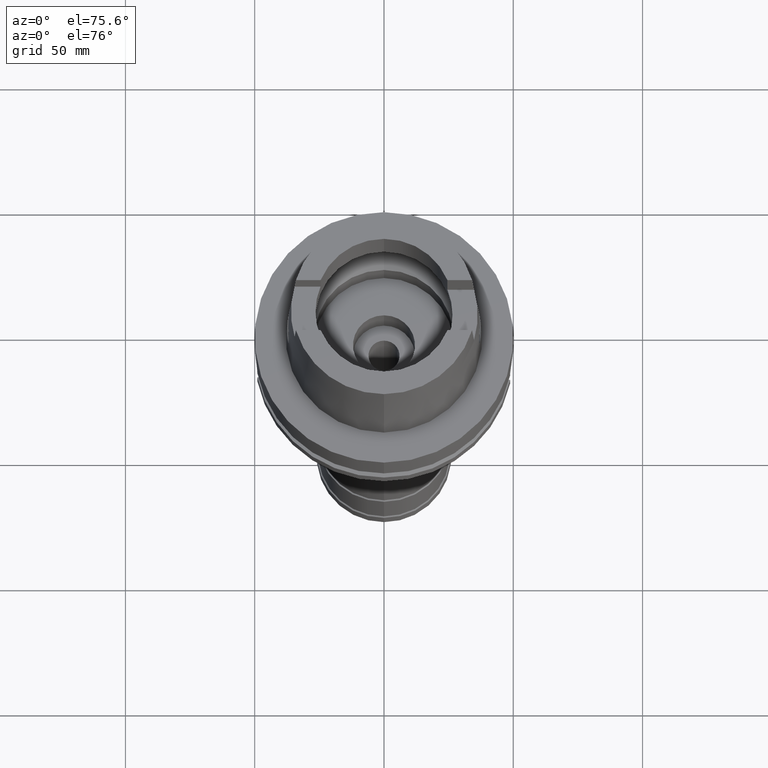
[diagram: clean part render]
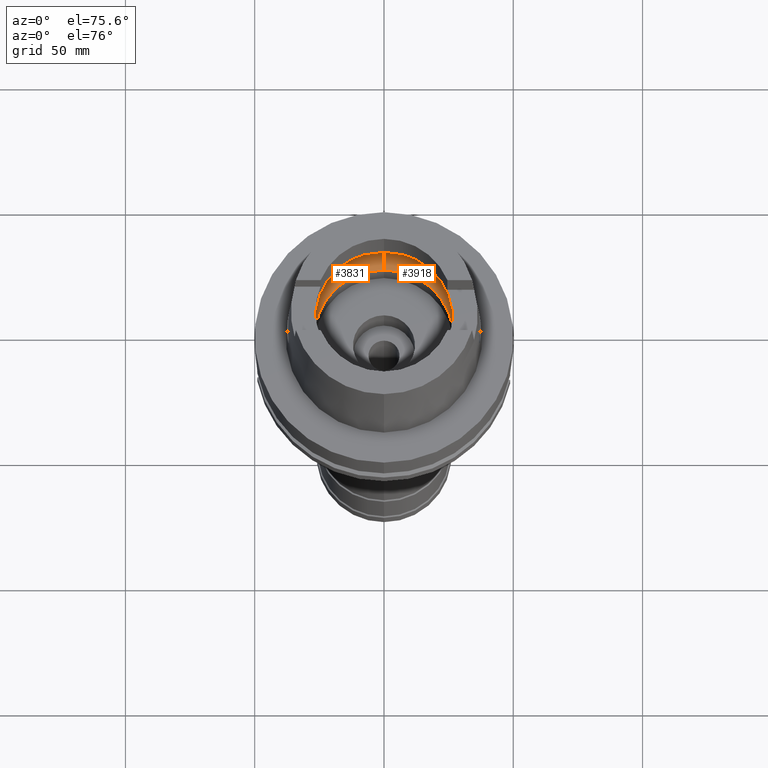
[diagram: same view with one multi-face feature highlighted, each face labeled with its STEP entity id]
A machine part, auxiliary view. The highlighted faces form ONE feature: a constant-radius fillet chain: 2 tangent blend faces with common blend radius 12 mm. The faces share edges in the B-rep.
Their STEP definitions:
[1] entity #3918 (Torus):
#1886=CARTESIAN_POINT('',(0.E0,-1.95E1,9.496624327026E0));
#1887=DIRECTION('',(-1.E0,0.E0,0.E0));
#1888=DIRECTION('',(0.E0,-6.166666666667E-1,-7.872243785746E-1));
#1889=AXIS2_PLACEMENT_3D('',#1886,#1887,#1888);
#1950=CARTESIAN_POINT('',(3.140918884336E1,-2.390158196044E0,9.496624327026E0));
#1979=CARTESIAN_POINT('',(3.140918884336E1,2.390158196044E0,9.496624327026E0));
#1998=CARTESIAN_POINT('',(3.148971910754E1,0.E0,9.E0));
#1999=CARTESIAN_POINT('',(3.148971910754E1,-2.740169050541E-1,9.E0));
#2000=CARTESIAN_POINT('',(3.148416957998E1,-8.214776976887E-1,
9.037587211562E0));
#2001=CARTESIAN_POINT('',(3.145843718743E1,-1.626024717401E0,9.205157265854E0));
#2002=CARTESIAN_POINT('',(3.142817844845E1,-2.140614842228E0,9.388245737623E0));
#2003=CARTESIAN_POINT('',(3.140918884336E1,-2.390158196044E0,9.496624327026E0));
#2008=CARTESIAN_POINT('',(0.E0,0.E0,9.496624327026E0));
#2009=DIRECTION('',(0.E0,0.E0,-1.E0));
#2010=DIRECTION('',(9.971171061384E-1,-7.587803796965E-2,0.E0));
#2011=AXIS2_PLACEMENT_3D('',#2008,#2009,#2010);
#2016=CARTESIAN_POINT('',(0.E0,0.E0,4.993178413025E-2));
#2017=DIRECTION('',(0.E0,0.E0,1.E0));
#2018=DIRECTION('',(0.E0,-1.E0,0.E0));
#2019=AXIS2_PLACEMENT_3D('',#2016,#2017,#2018);
#2024=CARTESIAN_POINT('',(0.E0,1.95E1,9.496624327026E0));
#2025=DIRECTION('',(1.E0,0.E0,0.E0));
#2026=DIRECTION('',(0.E0,6.166666666667E-1,-7.872243785746E-1));
#2027=AXIS2_PLACEMENT_3D('',#2024,#2025,#2026);
#2032=CARTESIAN_POINT('',(0.E0,0.E0,9.496624327026E0));
#2033=DIRECTION('',(0.E0,0.E0,-1.E0));
#2034=DIRECTION('',(0.E0,1.E0,0.E0));
#2035=AXIS2_PLACEMENT_3D('',#2032,#2033,#2034);
#2040=CARTESIAN_POINT('',(3.140918884336E1,2.390158196044E0,9.496624327026E0));
#2041=CARTESIAN_POINT('',(3.142817835740E1,2.140616038809E0,9.388246257307E0));
#2042=CARTESIAN_POINT('',(3.145843708024E1,1.626027635001E0,9.205157956654E0));
#2043=CARTESIAN_POINT('',(3.148416964729E1,8.214755204284E-1,9.037586771557E0));
#2044=CARTESIAN_POINT('',(3.148971910754E1,2.740159299782E-1,9.E0));
#2045=CARTESIAN_POINT('',(3.148971910754E1,0.E0,9.E0));
#2310=CARTESIAN_POINT('',(0.E0,2.69E1,4.993178413022E-2));
#2311=VERTEX_POINT('',#2310);
#2312=CARTESIAN_POINT('',(0.E0,-2.69E1,4.993178413025E-2));
#2313=VERTEX_POINT('',#2312);
#2317=CARTESIAN_POINT('',(0.E0,3.15E1,9.496624327026E0));
#2318=VERTEX_POINT('',#2317);
#2319=CARTESIAN_POINT('',(0.E0,-3.15E1,9.496624327026E0));
#2320=VERTEX_POINT('',#2319);
#2322=VERTEX_POINT('',#1950);
#2324=VERTEX_POINT('',#1998);
#2329=VERTEX_POINT('',#1979);
#3903=CARTESIAN_POINT('',(0.E0,0.E0,9.496624327026E0));
#3904=DIRECTION('',(0.E0,0.E0,1.E0));
#3905=DIRECTION('',(0.E0,1.E0,0.E0));
#3906=AXIS2_PLACEMENT_3D('',#3903,#3904,#3905);
#3907=TOROIDAL_SURFACE('',#3906,1.95E1,1.2E1);
#3908=ORIENTED_EDGE('',*,*,#3893,.T.);
#3909=ORIENTED_EDGE('',*,*,#3882,.T.);
#3910=ORIENTED_EDGE('',*,*,#3825,.F.);
#3911=ORIENTED_EDGE('',*,*,#3790,.T.);
#3912=ORIENTED_EDGE('',*,*,#3822,.T.);
#3913=ORIENTED_EDGE('',*,*,#3876,.T.);
#3915=ORIENTED_EDGE('',*,*,#3914,.T.);
#3916=EDGE_LOOP('',(#3908,#3909,#3910,#3911,#3912,#3913,#3915));
#3917=FACE_OUTER_BOUND('',#3916,.F.);
#1890=CIRCLE('',#1889,1.2E1);
#2004=B_SPLINE_CURVE_WITH_KNOTS('',3,(#1998,#1999,#2000,#2001,#2002,#2003),
.UNSPECIFIED.,.F.,.F.,(4,1,1,4),(0.E0,3.333333333333E-1,6.666666666667E-1,1.E0),
.UNSPECIFIED.);
#2012=CIRCLE('',#2011,3.15E1);
#2020=CIRCLE('',#2019,2.69E1);
#2028=CIRCLE('',#2027,1.2E1);
#2036=CIRCLE('',#2035,3.15E1);
#2046=B_SPLINE_CURVE_WITH_KNOTS('',3,(#2040,#2041,#2042,#2043,#2044,#2045),
.UNSPECIFIED.,.F.,.F.,(4,1,1,4),(0.E0,3.333333333333E-1,6.666666666667E-1,1.E0),
.UNSPECIFIED.);
#3790=EDGE_CURVE('',#2313,#2311,#2020,.T.);
#3822=EDGE_CURVE('',#2311,#2318,#2028,.T.);
#3825=EDGE_CURVE('',#2313,#2320,#1890,.T.);
#3876=EDGE_CURVE('',#2318,#2329,#2036,.T.);
#3882=EDGE_CURVE('',#2322,#2320,#2012,.T.);
#3893=EDGE_CURVE('',#2324,#2322,#2004,.T.);
#3914=EDGE_CURVE('',#2329,#2324,#2046,.T.);
#3918=ADVANCED_FACE('',(#3917),#3907,.F.);
[2] entity #3831 (Torus):
#1850=CARTESIAN_POINT('',(-3.140918884336E1,-2.390158196044E0,
9.496624327026E0));
#1851=CARTESIAN_POINT('',(-3.142817848467E1,-2.140614366329E0,
9.388245530937E0));
#1852=CARTESIAN_POINT('',(-3.145843724500E1,-1.626023551083E0,
9.205156904102E0));
#1853=CARTESIAN_POINT('',(-3.148416960718E1,-8.214762204955E-1,
9.037587027959E0));
#1854=CARTESIAN_POINT('',(-3.148971910754E1,-2.740162681909E-1,9.E0));
#1855=CARTESIAN_POINT('',(-3.148971910754E1,0.E0,9.E0));
#1860=CARTESIAN_POINT('',(-3.148971910754E1,0.E0,9.E0));
#1861=CARTESIAN_POINT('',(-3.148971910754E1,2.740165669665E-1,9.E0));
#1862=CARTESIAN_POINT('',(-3.148416962018E1,8.214769982256E-1,
9.037586954605E0));
#1863=CARTESIAN_POINT('',(-3.145843702194E1,1.626028819033E0,9.205158323105E0));
#1864=CARTESIAN_POINT('',(-3.142817832063E1,2.140616521958E0,9.388246467142E0));
#1865=CARTESIAN_POINT('',(-3.140918884336E1,2.390158196044E0,9.496624327026E0));
#1870=CARTESIAN_POINT('',(0.E0,0.E0,9.496624327026E0));
#1871=DIRECTION('',(0.E0,0.E0,-1.E0));
#1872=DIRECTION('',(-9.971171061384E-1,7.587803796965E-2,0.E0));
#1873=AXIS2_PLACEMENT_3D('',#1870,#1871,#1872);
#1878=CARTESIAN_POINT('',(0.E0,0.E0,4.993178413026E-2));
#1879=DIRECTION('',(0.E0,0.E0,1.E0));
#1880=DIRECTION('',(0.E0,1.E0,0.E0));
#1881=AXIS2_PLACEMENT_3D('',#1878,#1879,#1880);
#1886=CARTESIAN_POINT('',(0.E0,-1.95E1,9.496624327026E0));
#1887=DIRECTION('',(-1.E0,0.E0,0.E0));
#1888=DIRECTION('',(0.E0,-6.166666666667E-1,-7.872243785746E-1));
#1889=AXIS2_PLACEMENT_3D('',#1886,#1887,#1888);
#1894=CARTESIAN_POINT('',(0.E0,0.E0,9.496624327026E0));
#1895=DIRECTION('',(0.E0,0.E0,-1.E0));
#1896=DIRECTION('',(0.E0,-1.E0,0.E0));
#1897=AXIS2_PLACEMENT_3D('',#1894,#1895,#1896);
#2024=CARTESIAN_POINT('',(0.E0,1.95E1,9.496624327026E0));
#2025=DIRECTION('',(1.E0,0.E0,0.E0));
#2026=DIRECTION('',(0.E0,6.166666666667E-1,-7.872243785746E-1));
#2027=AXIS2_PLACEMENT_3D('',#2024,#2025,#2026);
#2310=CARTESIAN_POINT('',(0.E0,2.69E1,4.993178413022E-2));
#2311=VERTEX_POINT('',#2310);
#2312=CARTESIAN_POINT('',(0.E0,-2.69E1,4.993178413025E-2));
#2313=VERTEX_POINT('',#2312);
#2314=VERTEX_POINT('',#1850);
#2315=VERTEX_POINT('',#1855);
#2316=VERTEX_POINT('',#1865);
#2317=CARTESIAN_POINT('',(0.E0,3.15E1,9.496624327026E0));
#2318=VERTEX_POINT('',#2317);
#2319=CARTESIAN_POINT('',(0.E0,-3.15E1,9.496624327026E0));
#2320=VERTEX_POINT('',#2319);
#3811=CARTESIAN_POINT('',(0.E0,0.E0,9.496624327026E0));
#3812=DIRECTION('',(0.E0,0.E0,1.E0));
#3813=DIRECTION('',(0.E0,1.E0,0.E0));
#3814=AXIS2_PLACEMENT_3D('',#3811,#3812,#3813);
#3815=TOROIDAL_SURFACE('',#3814,1.95E1,1.2E1);
#3817=ORIENTED_EDGE('',*,*,#3816,.T.);
#3819=ORIENTED_EDGE('',*,*,#3818,.T.);
#3821=ORIENTED_EDGE('',*,*,#3820,.T.);
#3823=ORIENTED_EDGE('',*,*,#3822,.F.);
#3824=ORIENTED_EDGE('',*,*,#3806,.T.);
#3826=ORIENTED_EDGE('',*,*,#3825,.T.);
#3828=ORIENTED_EDGE('',*,*,#3827,.T.);
#3829=EDGE_LOOP('',(#3817,#3819,#3821,#3823,#3824,#3826,#3828));
#3830=FACE_OUTER_BOUND('',#3829,.F.);
#1856=B_SPLINE_CURVE_WITH_KNOTS('',3,(#1850,#1851,#1852,#1853,#1854,#1855),
.UNSPECIFIED.,.F.,.F.,(4,1,1,4),(0.E0,3.333333333333E-1,6.666666666667E-1,1.E0),
.UNSPECIFIED.);
#1866=B_SPLINE_CURVE_WITH_KNOTS('',3,(#1860,#1861,#1862,#1863,#1864,#1865),
.UNSPECIFIED.,.F.,.F.,(4,1,1,4),(0.E0,3.333333333333E-1,6.666666666667E-1,1.E0),
.UNSPECIFIED.);
#1874=CIRCLE('',#1873,3.15E1);
#1882=CIRCLE('',#1881,2.69E1);
#1890=CIRCLE('',#1889,1.2E1);
#1898=CIRCLE('',#1897,3.15E1);
#2028=CIRCLE('',#2027,1.2E1);
#3806=EDGE_CURVE('',#2311,#2313,#1882,.T.);
#3816=EDGE_CURVE('',#2314,#2315,#1856,.T.);
#3818=EDGE_CURVE('',#2315,#2316,#1866,.T.);
#3820=EDGE_CURVE('',#2316,#2318,#1874,.T.);
#3822=EDGE_CURVE('',#2311,#2318,#2028,.T.);
#3825=EDGE_CURVE('',#2313,#2320,#1890,.T.);
#3827=EDGE_CURVE('',#2320,#2314,#1898,.T.);
#3831=ADVANCED_FACE('',(#3830),#3815,.F.);